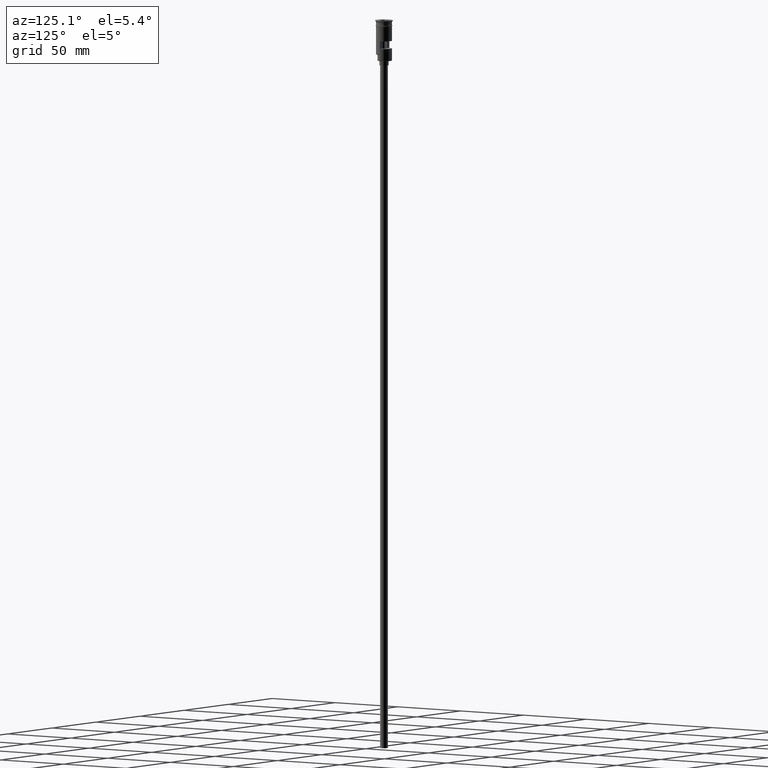
[diagram: clean part render]
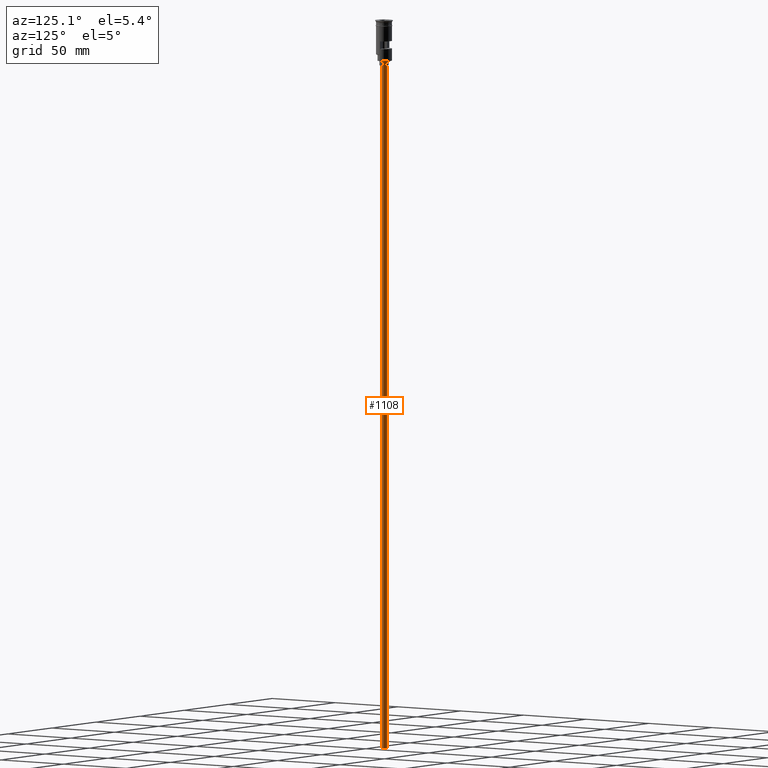
[diagram: same view with one face highlighted and labeled with its STEP entity id]
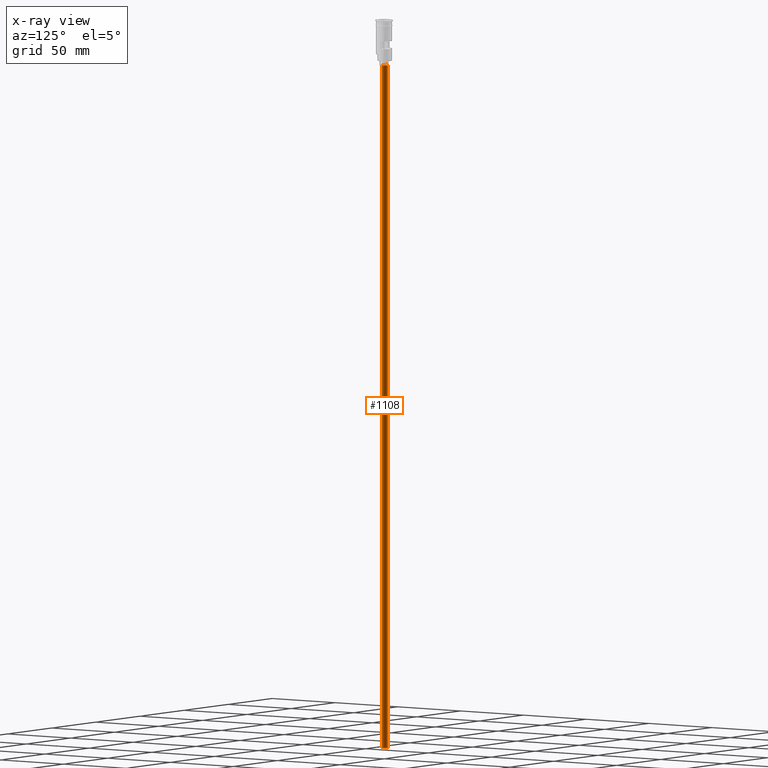
[diagram: x-ray of the same camera — body ghosted, the highlighted face saturated]
A machine part, auxiliary view. The second image highlights one B-rep face of the part: STEP entity #1108.
The next image is the same camera in x-ray: the body ghosted, the highlighted face saturated — about 0% of this face is hidden behind the body in this view.
In plain terms, the highlighted cylindrical surface (edge-blend (fillet) strip) has radius 2.5 mm, axis along (-0, -0, 1).
Its self-contained STEP definition (entity closure, byte-faithful):
#55 = DIRECTION ( 'NONE',  ( -0.000000000000000000, -0.000000000000000000, 1.000000000000000000 ) ) ;
#67 = EDGE_CURVE ( 'NONE', #183, #538, #363, .T. ) ;
#133 = CARTESIAN_POINT ( 'NONE',  ( 2.500000000000000000, 0.000000000000000000, -29.50000000000000000 ) ) ;
#183 = VERTEX_POINT ( 'NONE', #663 ) ;
#191 = AXIS2_PLACEMENT_3D ( 'NONE', #1444, #210, #1198 ) ;
#210 = DIRECTION ( 'NONE',  ( 0.000000000000000000, 0.000000000000000000, -1.000000000000000000 ) ) ;
#212 = EDGE_LOOP ( 'NONE', ( #400, #889, #1519, #1246 ) ) ;
#344 = EDGE_CURVE ( 'NONE', #556, #183, #1460, .T. ) ;
#363 = LINE ( 'NONE', #1290, #959 ) ;
#400 = ORIENTED_EDGE ( 'NONE', *, *, #344, .F. ) ;
#516 = DIRECTION ( 'NONE',  ( -0.000000000000000000, -0.000000000000000000, 1.000000000000000000 ) ) ;
#538 = VERTEX_POINT ( 'NONE', #133 ) ;
#543 = CARTESIAN_POINT ( 'NONE',  ( -2.500000000000000000, 3.061616997868383141E-16, -476.5000000000000568 ) ) ;
#556 = VERTEX_POINT ( 'NONE', #768 ) ;
#586 = DIRECTION ( 'NONE',  ( 0.000000000000000000, 0.000000000000000000, -1.000000000000000000 ) ) ;
#663 = CARTESIAN_POINT ( 'NONE',  ( 2.500000000000000000, 0.000000000000000000, -476.5000000000000568 ) ) ;
#713 = CARTESIAN_POINT ( 'NONE',  ( 0.000000000000000000, 0.000000000000000000, -29.50000000000000000 ) ) ;
#768 = CARTESIAN_POINT ( 'NONE',  ( -2.500000000000000000, 3.061616997868383141E-16, -476.5000000000000568 ) ) ;
#861 = AXIS2_PLACEMENT_3D ( 'NONE', #1440, #1056, #1184 ) ;
#886 = AXIS2_PLACEMENT_3D ( 'NONE', #713, #586, #1081 ) ;
#889 = ORIENTED_EDGE ( 'NONE', *, *, #1443, .T. ) ;
#952 = CYLINDRICAL_SURFACE ( 'NONE', #861, 2.500000000000000000 ) ;
#959 = VECTOR ( 'NONE', #516, 1000.000000000000000 ) ;
#987 = VECTOR ( 'NONE', #55, 1000.000000000000000 ) ;
#1035 = LINE ( 'NONE', #543, #987 ) ;
#1056 = DIRECTION ( 'NONE',  ( -0.000000000000000000, -0.000000000000000000, 1.000000000000000000 ) ) ;
#1081 = DIRECTION ( 'NONE',  ( -1.000000000000000000, 0.000000000000000000, 0.000000000000000000 ) ) ;
#1108 = ADVANCED_FACE ( 'NONE', ( #1339 ), #952, .T. ) ;
#1184 = DIRECTION ( 'NONE',  ( 1.000000000000000000, 0.000000000000000000, 0.000000000000000000 ) ) ;
#1198 = DIRECTION ( 'NONE',  ( -1.000000000000000000, 0.000000000000000000, 0.000000000000000000 ) ) ;
#1229 = EDGE_CURVE ( 'NONE', #1453, #538, #1487, .T. ) ;
#1246 = ORIENTED_EDGE ( 'NONE', *, *, #67, .F. ) ;
#1265 = CARTESIAN_POINT ( 'NONE',  ( -2.500000000000000000, 3.061616997868383141E-16, -29.50000000000000000 ) ) ;
#1290 = CARTESIAN_POINT ( 'NONE',  ( 2.500000000000000000, 0.000000000000000000, -476.5000000000000568 ) ) ;
#1339 = FACE_OUTER_BOUND ( 'NONE', #212, .T. ) ;
#1440 = CARTESIAN_POINT ( 'NONE',  ( 0.000000000000000000, 0.000000000000000000, -476.5000000000000568 ) ) ;
#1443 = EDGE_CURVE ( 'NONE', #556, #1453, #1035, .T. ) ;
#1444 = CARTESIAN_POINT ( 'NONE',  ( 0.000000000000000000, 0.000000000000000000, -476.5000000000000568 ) ) ;
#1453 = VERTEX_POINT ( 'NONE', #1265 ) ;
#1460 = CIRCLE ( 'NONE', #191, 2.500000000000000000 ) ;
#1487 = CIRCLE ( 'NONE', #886, 2.500000000000000000 ) ;
#1519 = ORIENTED_EDGE ( 'NONE', *, *, #1229, .T. ) ;